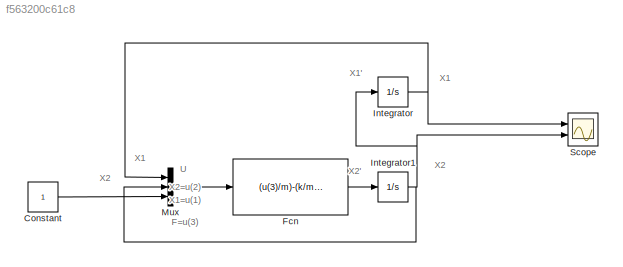
MODEL slx_f563200c61c8
KIND model
BLOCK [Constant] Constant
BLOCK [Fcn] Fcn
  Expr = (u(3)/m)-(k/m)*u(1)-((k/m)*a^2*u(1)^3)-(B/m)*u(2)
BLOCK [Integrator] Integrator
  InitialCondition = Ci1
  Ports = [1, 1]
BLOCK [Integrator] Integrator1
  InitialCondition = Ci2
  Ports = [1, 1]
BLOCK [Mux] Mux
  DisplayOption = bar
  Inputs = 3
  Ports = [3, 1]
BLOCK [Scope] Scope
  DataFormat = StructureWithTime
  Floating = off
  NumInputPorts = 2
  Ports = [2]
  SampleTime = 0
  ShowLegends = off
  YMax = 5~5
  YMin = -5~-5
ANNOTATION (root): U
ANNOTATION (root): X1
ANNOTATION (root): X1'
ANNOTATION (root): X1=u(1) X2=u(2) F=u(3)
ANNOTATION (root): X2
ANNOTATION (root): X2'
LINE Constant:1 -> Mux:3
LINE Fcn:1 -> Integrator1:1
NET Integrator1:1 -> Integrator:1, Mux:2, Scope:2
NET Integrator:1 -> Mux:1, Scope:1
LINE Mux:1 -> Fcn:1
note: NET lines group one-source signal fan-out (src -> all destinations, sorted); 1:1 wires keep LINE
